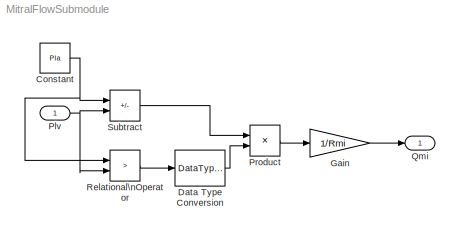
MODEL MitralFlowSubmodule
KIND model
BLOCK [Constant] Constant
  SID = 2
  Value = Pla
BLOCK [DataTypeConversion] Data Type Conversion
  OutDataTypeStr = double
  RndMeth = Floor
  SID = 3
  SaturateOnIntegerOverflow = off
BLOCK [Gain] Gain
  Gain = 1/Rmi
  SID = 4
BLOCK [Inport] Plv
  SID = 1
BLOCK [Product] Product
  Ports = [2, 1]
  RndMeth = Zero
  SID = 5
BLOCK [Outport] Qmi
  SID = 8
BLOCK [RelationalOperator] Relational\nOperator
  InputSameDT = off
  Operator = >
  OutDataTypeStr = boolean
  Ports = [2, 1]
  SID = 6
BLOCK [Sum] Subtract
  IconShape = rectangular
  Inputs = +-
  Ports = [2, 1]
  SID = 7
NET Constant:1 -> Relational\nOperator:1, Subtract:1
LINE Data Type Conversion:1 -> Product:2
LINE Gain:1 -> Qmi:1
NET Plv:1 -> Relational\nOperator:2, Subtract:2
LINE Product:1 -> Gain:1
LINE Relational\nOperator:1 -> Data Type Conversion:1
LINE Subtract:1 -> Product:1
note: NET lines group one-source signal fan-out (src -> all destinations, sorted); 1:1 wires keep LINE
